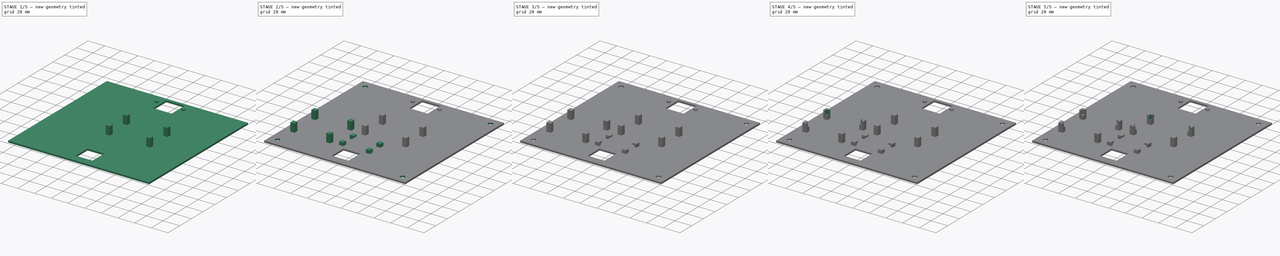
[diagram: build sequence overview — one tinted view per stage of 5, left to right]
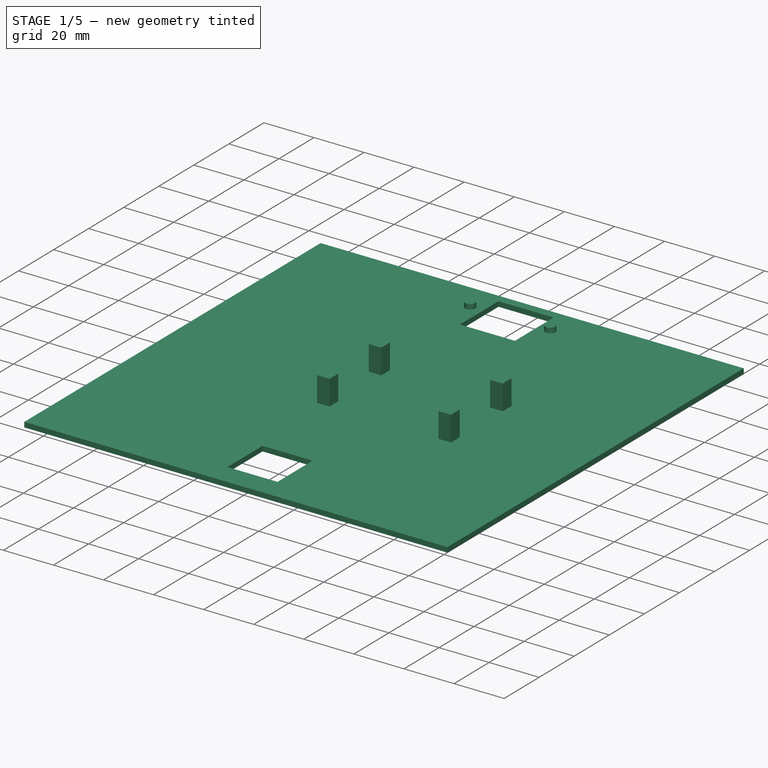
[diagram: stage 1 of 5 — iso view after this stage's code; geometry added in this stage tinted green]
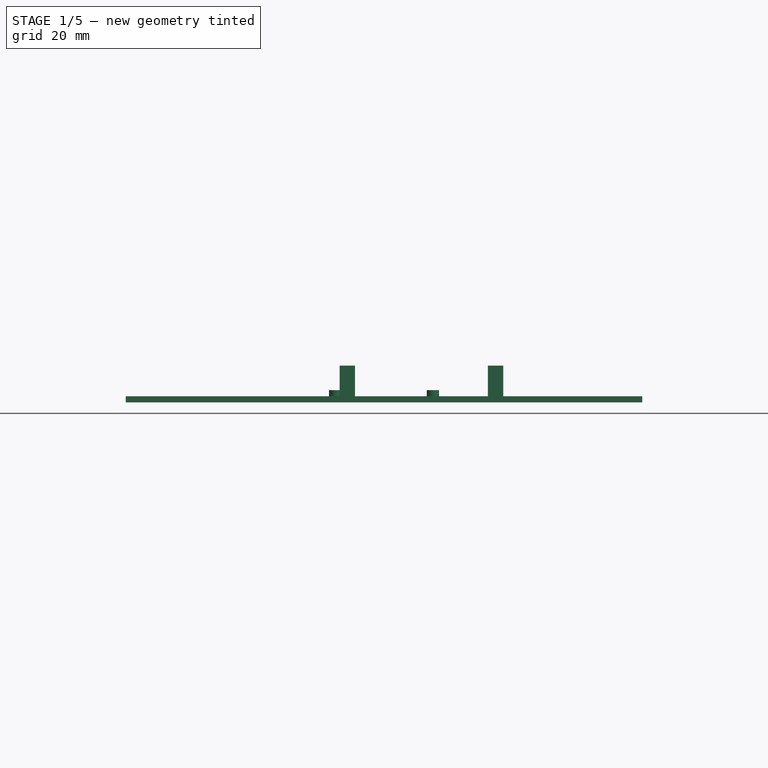
[diagram: stage 1 of 5 — front view after this stage's code; geometry added in this stage tinted green]
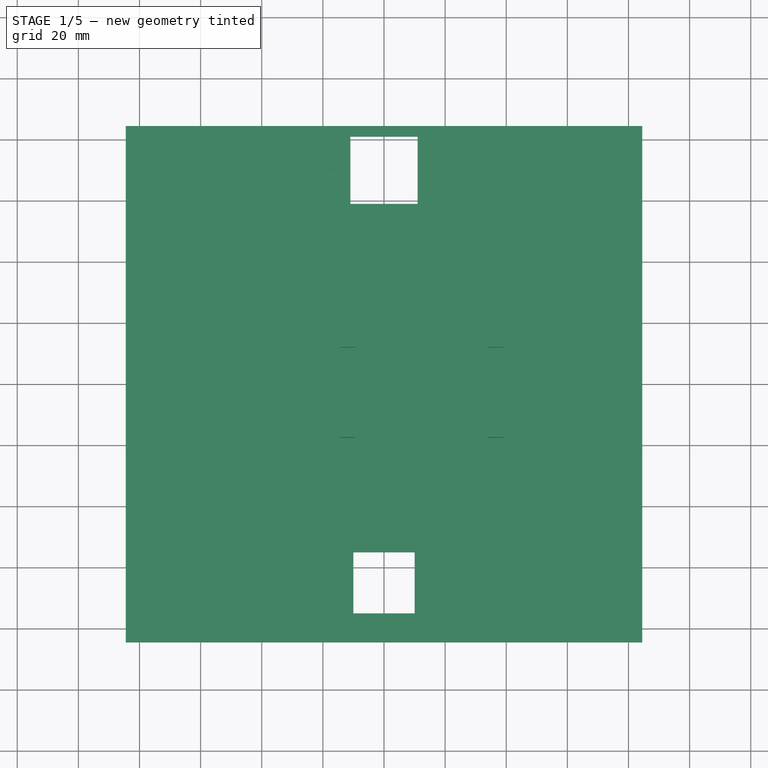
[diagram: stage 1 of 5 — top view after this stage's code; geometry added in this stage tinted green]
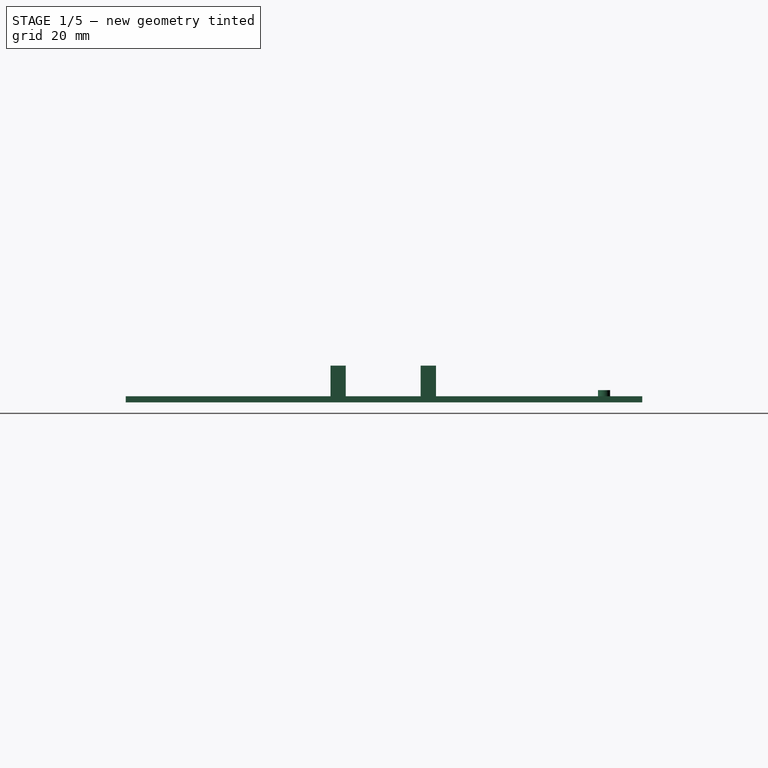
[diagram: stage 1 of 5 — right view after this stage's code; geometry added in this stage tinted green]
FCSTD DOCUMENT  (FreeCAD 1.0R38806 (Git))
Label: Frame75Back
License: All rights reserved
LicenseURL: https://en.wikipedia.org/wiki/All_rights_reserved
objects: Sketcher::SketchObject×19, PartDesign::Pocket×14, PartDesign::Pad×5, PartDesign::Plane×1, PartDesign::Body×1
note: 97 computed .brp shape members not serialized (recipe doc carries the construction recipe); baked Part::Feature solids carry a one-line shape summary decoded from their .brp

FEATURE [PartDesign::Plane] DatumPlane
  AttachmentSupport = -> [XY_Plane]
  Length = 202.8
  MapMode = 5
  ResizeMode = 0
  Width = 202.8
FEATURE [Sketcher::SketchObject] Sketch  label="FrameBaseS"
  ArcFitTolerance = 0
  AttachmentOffset = pos=(0,0,-2) rot=(0,0,1;0rad)
  AttachmentSupport = -> [DatumPlane]
  FullyConstrained = true
  MakeInternals = false
  MapMode = 5
  Placement = pos=(0,0,-2) rot=(0,0,1;0rad)
  sketch-geometry (5):
    g0: LineSegment StartX=-84.5 StartY=-84.5 StartZ=0 EndX=-84.5 EndY=84.5 EndZ=0
    g1: LineSegment StartX=-84.5 StartY=84.5 StartZ=0 EndX=84.5 EndY=84.5 EndZ=0
    g2: LineSegment StartX=84.5 StartY=84.5 StartZ=0 EndX=84.5 EndY=-84.5 EndZ=0
    g3: LineSegment StartX=84.5 StartY=-84.5 StartZ=0 EndX=-84.5 EndY=-84.5 EndZ=0
    g4: GeomPoint [constr] X=0 Y=-1e-16 Z=0
  constraints (12):
    c: Coincident(g0,g1)
    c: Coincident(g1,g2)
    c: Coincident(g2,g3)
    c: Coincident(g3,g0)
    c: Horizontal(g1)
    c: Horizontal(g3)
    c: Vertical(g0)
    c: Vertical(g2)
    c: Symmetric(g1,g0,g4)
    c: Coincident(g4,g-1)
    c: DistanceY(g0,g0) = 169  'Frame Height'
    c: DistanceX(g1,g1) = 169  'Frame Width'
FEATURE [PartDesign::Pad] Pad  label="FrameBase"
  Direction = (0,0,1)
  Length = 2
  Length2 = 10
  Profile = -> Sketch
  ReferenceAxis = -> Sketch [N_Axis]
  Suppressed = false
  Type = 0
FEATURE [Sketcher::SketchObject] Sketch001  label="HolesS"
  ArcFitTolerance = 0
  AttachmentSupport = -> [DatumPlane]
  ExternalGeometry = -> [Pad]
  FullyConstrained = true
  MakeInternals = false
  MapMode = 5
  sketch-geometry (8):
    g0: LineSegment [constr] StartX=-75 StartY=75 StartZ=0 EndX=75 EndY=75 EndZ=0
    g1: LineSegment [constr] StartX=75 StartY=75 StartZ=0 EndX=75 EndY=-75 EndZ=0
    g2: LineSegment [constr] StartX=75 StartY=-75 StartZ=0 EndX=-75 EndY=-75 EndZ=0
    g3: LineSegment [constr] StartX=-75 StartY=-75 StartZ=0 EndX=-75 EndY=75 EndZ=0
    g4: Circle CenterX=75 CenterY=75 CenterZ=0 NormalX=0 NormalY=0 NormalZ=1 AngleXU=0 Radius=2.75
    g5: Circle CenterX=75 CenterY=-75 CenterZ=0 NormalX=0 NormalY=0 NormalZ=1 AngleXU=0 Radius=2.75
    g6: Circle CenterX=-75 CenterY=-75 CenterZ=0 NormalX=0 NormalY=0 NormalZ=1 AngleXU=0 Radius=2.75
    g7: Circle CenterX=-75 CenterY=75 CenterZ=0 NormalX=0 NormalY=0 NormalZ=1 AngleXU=0 Radius=2.75
  constraints (20):
    c: Horizontal(g0)
    c: Vertical(g1)
    c: Horizontal(g2)
    c: Vertical(g3)
    c: Coincident(g0,g3)
    c: Coincident(g3,g2)
    c: Coincident(g1,g2)
    c: Coincident(g0,g1)
    c: Equal(g4,g5)
    c: Equal(g4,g6)
    c: Equal(g4,g7)
    c: Diameter(g4) = 5.5  'HolesDiameter'
    c: Coincident(g0,g7)
    c: Coincident(g4,g0)
    c: Coincident(g5,g1)
    c: Coincident(g6,g2)
    c: DistanceX(g7,g-1) = 75
    c: DistanceY(g7,g-1) = -75
    c: DistanceX(g5,g-1) = -75
    c: DistanceY(g5,g-1) = 75
FEATURE [Sketcher::SketchObject] Sketch002  label="CutoutsS"
  ArcFitTolerance = 0
  AttachmentSupport = -> [DatumPlane]
  ExternalGeometry = -> [Pad]
  FullyConstrained = true
  MakeInternals = false
  MapMode = 5
  sketch-geometry (10):
    g0: LineSegment StartX=-10 StartY=-55 StartZ=0 EndX=-10 EndY=-75 EndZ=0
    g1: LineSegment StartX=-10 StartY=-75 StartZ=0 EndX=10 EndY=-75 EndZ=0
    g2: LineSegment StartX=10 StartY=-75 StartZ=0 EndX=10 EndY=-55 EndZ=0
    g3: LineSegment StartX=10 StartY=-55 StartZ=0 EndX=-10 EndY=-55 EndZ=0
    g4: GeomPoint [constr] X=0 Y=-65 Z=0
    g5: LineSegment StartX=-11 StartY=81 StartZ=0 EndX=-11 EndY=59 EndZ=0
    g6: LineSegment StartX=-11 StartY=59 StartZ=0 EndX=11 EndY=59 EndZ=0
    g7: LineSegment StartX=11 StartY=59 StartZ=0 EndX=11 EndY=81 EndZ=0
    g8: LineSegment StartX=11 StartY=81 StartZ=0 EndX=-11 EndY=81 EndZ=0
    g9: GeomPoint [constr] X=0 Y=70 Z=0
  constraints (26):
    c: Coincident(g0,g1)
    c: Coincident(g1,g2)
    c: Coincident(g2,g3)
    c: Coincident(g3,g0)
    c: Horizontal(g1)
    c: Horizontal(g3)
    c: Vertical(g0)
    c: Vertical(g2)
    c: Symmetric(g1,g0,g4)
    c: PointOnObject(g4,g-2)
    c: DistanceX(g3,g3) = 20  'CableWidth'
    c: DistanceY(g0,g0) = 20  'CableHeight'
    c: Coincident(g5,g6)
    c: Coincident(g6,g7)
    c: Coincident(g7,g8)
    c: Coincident(g8,g5)
    c: Horizontal(g6)
    c: Horizontal(g8)
    c: Vertical(g5)
    c: Vertical(g7)
    c: Symmetric(g6,g5,g9)
    c: DistanceX(g8,g8) = 22  'SensorWidth'
    c: PointOnObject(g9,g-2)
    c: DistanceY(g4,g-1) = 65
    c: Distance(g7) = 22
    c: DistanceY(g-1,g9) = 70
FEATURE [PartDesign::Pocket] Pocket001  label="Cutouts"
  BaseFeature = -> Pad
  Direction = (0,0,-1)
  Length = 5
  Length2 = 5
  Profile = -> Sketch002
  ReferenceAxis = -> Sketch002 [N_Axis]
  Suppressed = false
  Type = 2
FEATURE [Sketcher::SketchObject] Sketch003  label="PegsS"
  ArcFitTolerance = 0
  AttachmentSupport = -> [DatumPlane]
  ExternalGeometry = -> [Pad]
  FullyConstrained = true
  MakeInternals = false
  MapMode = 5
  sketch-geometry (2):
    g0: Circle CenterX=-16 CenterY=72 CenterZ=0 NormalX=0 NormalY=0 NormalZ=1 AngleXU=0 Radius=2
    g1: Circle CenterX=16 CenterY=72 CenterZ=0 NormalX=0 NormalY=0 NormalZ=1 AngleXU=0 Radius=2
  constraints (6):
    c: Equal(g0,g1)
    c: Diameter(g0) = 4  'PegDiameter'
    c: Distance(g0,g-3) = 12.5  'LPegOffsetY'
    c: Distance(g1,g-3) = 12.5  'RPegOffsetY'
    c: DistanceX(g-2,g0) = -16  'LPegOffsetX'
    c: DistanceX(g-2,g1) = 16  'RPegOffsetX'
FEATURE [PartDesign::Pad] Pad001  label="Pegs"
  BaseFeature = -> Pocket001
  Direction = (0,0,1)
  Length = 2
  Length2 = 10
  Profile = -> Sketch003
  ReferenceAxis = -> Sketch003 [N_Axis]
  Suppressed = false
  Type = 0
FEATURE [Sketcher::SketchObject] Sketch005  label="ESP32MountsS"
  ArcFitTolerance = 0
  AttachmentSupport = -> [DatumPlane]
  FullyConstrained = true
  MakeInternals = false
  MapMode = 5
  sketch-geometry (25):
    g0: LineSegment StartX=-14.5 StartY=17 StartZ=0 EndX=-14.5 EndY=12 EndZ=0
    g1: LineSegment StartX=-14.5 StartY=12 StartZ=0 EndX=-9.5 EndY=12 EndZ=0
    g2: LineSegment StartX=-9.5 StartY=12 StartZ=0 EndX=-9.5 EndY=17 EndZ=0
    g3: LineSegment StartX=-9.5 StartY=17 StartZ=0 EndX=-14.5 EndY=17 EndZ=0
    g4: GeomPoint [constr] X=-12 Y=14.5 Z=0
    g5: LineSegment StartX=34 StartY=17 StartZ=0 EndX=34 EndY=12 EndZ=0
    g6: LineSegment StartX=34 StartY=12 StartZ=0 EndX=39 EndY=12 EndZ=0
    g7: LineSegment StartX=39 StartY=12 StartZ=0 EndX=39 EndY=17 EndZ=0
    g8: LineSegment StartX=39 StartY=17 StartZ=0 EndX=34 EndY=17 EndZ=0
    g9: GeomPoint [constr] X=36.5 Y=14.5 Z=0
    g10: LineSegment StartX=-14.5 StartY=-12.5 StartZ=0 EndX=-14.5 EndY=-17.5 EndZ=0
    g11: LineSegment StartX=-14.5 StartY=-17.5 StartZ=0 EndX=-9.5 EndY=-17.5 EndZ=0
    g12: LineSegment StartX=-9.5 StartY=-17.5 StartZ=0 EndX=-9.5 EndY=-12.5 EndZ=0
    g13: LineSegment StartX=-9.5 StartY=-12.5 StartZ=0 EndX=-14.5 EndY=-12.5 EndZ=0
    g14: GeomPoint [constr] X=-12 Y=-15 Z=0
    g15: LineSegment StartX=34 StartY=-12.5 StartZ=0 EndX=34 EndY=-17.5 EndZ=0
    g16: LineSegment StartX=34 StartY=-17.5 StartZ=0 EndX=39 EndY=-17.5 EndZ=0
    g17: LineSegment StartX=39 StartY=-17.5 StartZ=0 EndX=39 EndY=-12.5 EndZ=0
    g18: LineSegment StartX=39 StartY=-12.5 StartZ=0 EndX=34 EndY=-12.5 EndZ=0
    g19: GeomPoint [constr] X=36.5 Y=-15 Z=0
    g20: LineSegment [constr] StartX=-12 StartY=-15 StartZ=0 EndX=36.5 EndY=-15 EndZ=0
    g21: LineSegment [constr] StartX=-12 StartY=14.5 StartZ=0 EndX=36.5 EndY=14.5 EndZ=0
    g22: LineSegment [constr] StartX=36.5 StartY=14.5 StartZ=0 EndX=36.5 EndY=-15 EndZ=0
    g23: LineSegment [constr] StartX=-12 StartY=14.5 StartZ=0 EndX=-12 EndY=-15 EndZ=0
    g24: LineSegment [constr] StartX=0 StartY=14.5 StartZ=0 EndX=0 EndY=-15 EndZ=0
  constraints (64):
    c: Coincident(g0,g1)
    c: Coincident(g1,g2)
    c: Coincident(g2,g3)
    c: Coincident(g3,g0)
    c: Horizontal(g1)
    c: Horizontal(g3)
    c: Vertical(g0)
    c: Vertical(g2)
    c: Symmetric(g1,g0,g4)
    c: Coincident(g5,g6)
    c: Coincident(g6,g7)
    c: Coincident(g7,g8)
    c: Coincident(g8,g5)
    c: Horizontal(g6)
    c: Horizontal(g8)
    c: Vertical(g5)
    c: Vertical(g7)
    c: Symmetric(g6,g5,g9)
    c: Coincident(g10,g11)
    c: Coincident(g11,g12)
    c: Coincident(g12,g13)
    c: Coincident(g13,g10)
    c: Horizontal(g11)
    c: Horizontal(g13)
    c: Vertical(g10)
    c: Vertical(g12)
    c: Symmetric(g11,g10,g14)
    c: Coincident(g15,g16)
    c: Coincident(g16,g17)
    c: Coincident(g17,g18)
    c: Coincident(g18,g15)
    c: Horizontal(g16)
    c: Horizontal(g18)
    c: Vertical(g15)
    c: Vertical(g17)
    c: Symmetric(g16,g15,g19)
    c: DistanceX(g8,g8) = 5
    c: DistanceY(g7,g7) = 5
    c: DistanceX(g3,g3) = 5
    c: DistanceY(g0,g0) = 5
    c: DistanceX(g11,g11) = 5
    c: DistanceY(g10,g10) = 5
    c: DistanceX(g16,g16) = 5
    c: DistanceY(g17,g17) = 5
    c: Horizontal(g20)
    c: Horizontal(g21)
    c: Vertical(g22)
    c: Vertical(g23)
    c: Coincident(g4,g21)
    c: Coincident(g4,g23)
    c: Coincident(g14,g23)
    c: Coincident(g14,g20)
    c: Coincident(g9,g21)
    c: Coincident(g9,g22)
    c: Coincident(g19,g20)
    c: Coincident(g19,g22)
    c: DistanceX(g21,g21) = 48.5  'ESPWidth'
    c: DistanceY(g23,g23) = 29.5  'ESPHeight'
    c: Vertical(g24)
    c: PointOnObject(g24,g21)
    c: PointOnObject(g24,g20)
    c: Distance(g19,g24) = 36.5  'RibbonOffset'
    c: PointOnObject(g24,g-2)  'BoardOffsetX'
    c: DistanceY(g-1,g24) = -15  'BoardOffsetY'
FEATURE [PartDesign::Pad] Pad003  label="ESP32Mounts"
  BaseFeature = -> Pad001
  Direction = (0,0,1)
  Length = 10
  Length2 = 10
  Profile = -> Sketch005
  ReferenceAxis = -> Sketch005 [N_Axis]
  Suppressed = false
  Type = 0
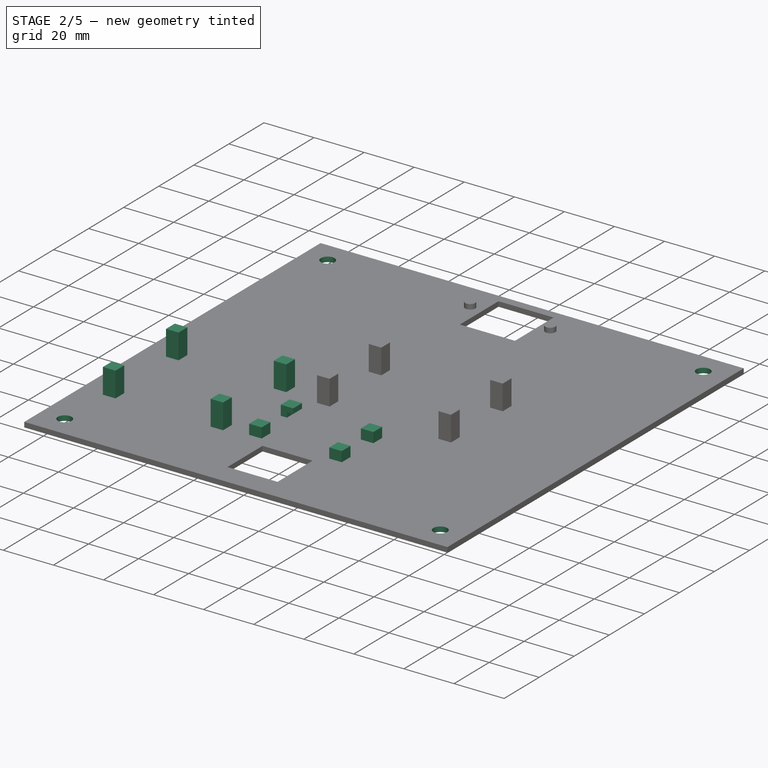
[diagram: stage 2 of 5 — iso view after this stage's code; geometry added in this stage tinted green]
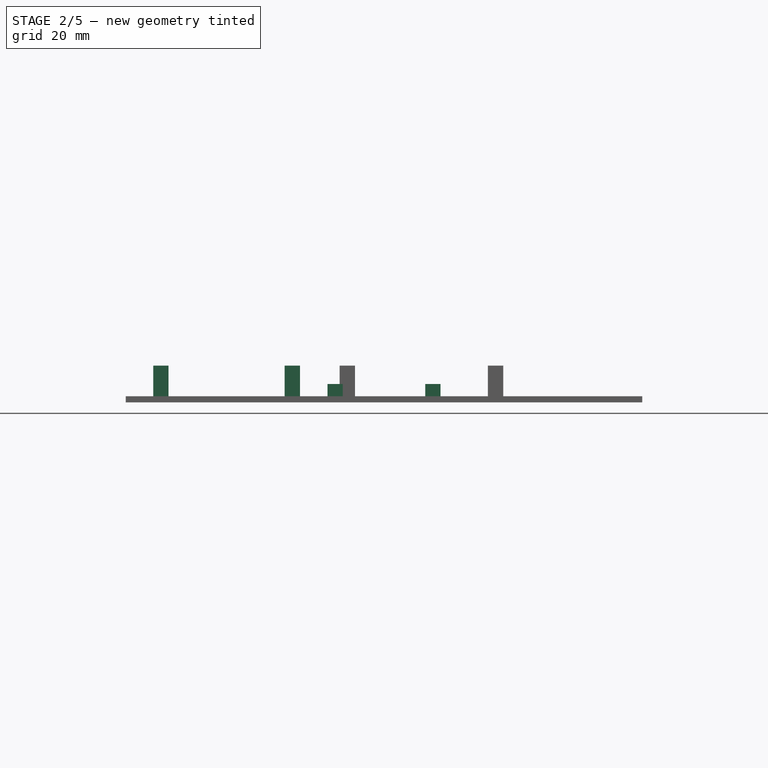
[diagram: stage 2 of 5 — front view after this stage's code; geometry added in this stage tinted green]
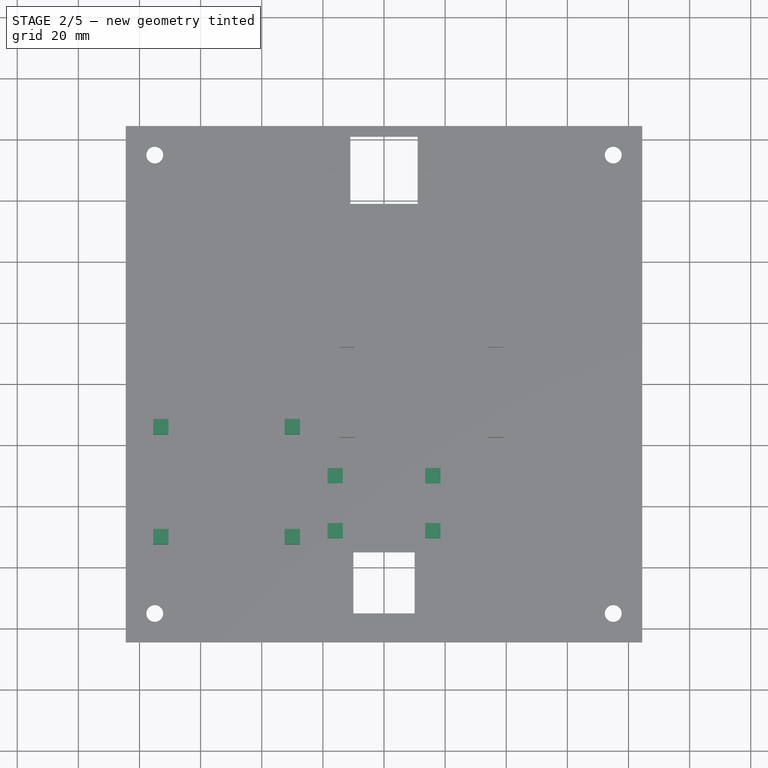
[diagram: stage 2 of 5 — top view after this stage's code; geometry added in this stage tinted green]
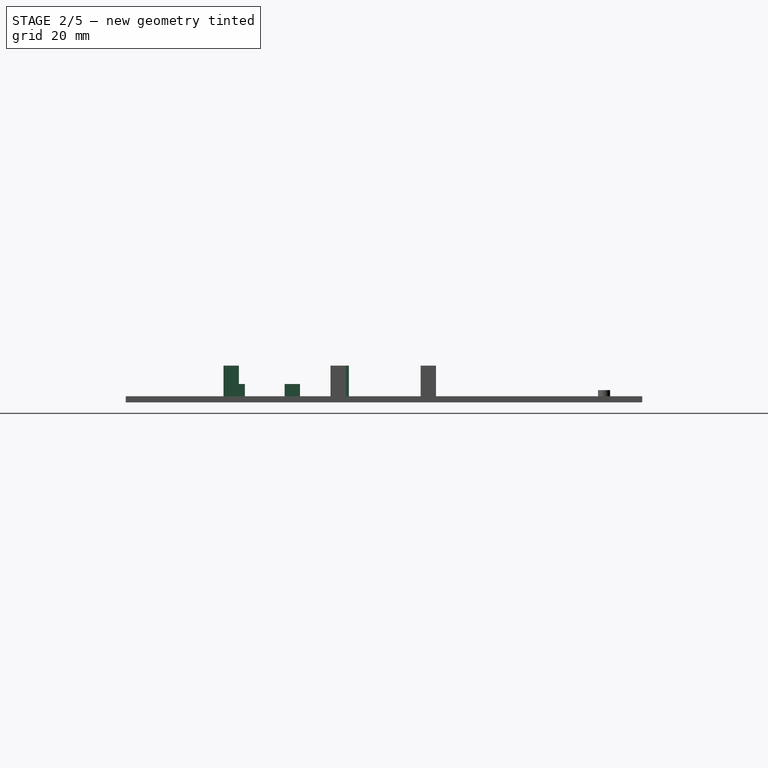
[diagram: stage 2 of 5 — right view after this stage's code; geometry added in this stage tinted green]
FEATURE [Sketcher::SketchObject] Sketch007  label="PSUMountsS"
  ArcFitTolerance = 0
  AttachmentSupport = -> [DatumPlane]
  FullyConstrained = true
  MakeInternals = false
  MapMode = 5
  sketch-geometry (25):
    g0: LineSegment StartX=-75.5 StartY=-11.5 StartZ=0 EndX=-75.5 EndY=-16.5 EndZ=0
    g1: LineSegment StartX=-75.5 StartY=-16.5 StartZ=0 EndX=-70.5 EndY=-16.5 EndZ=0
    g2: LineSegment StartX=-70.5 StartY=-16.5 StartZ=0 EndX=-70.5 EndY=-11.5 EndZ=0
    g3: LineSegment StartX=-70.5 StartY=-11.5 StartZ=0 EndX=-75.5 EndY=-11.5 EndZ=0
    g4: GeomPoint [constr] X=-73 Y=-14 Z=0
    g5: LineSegment StartX=-32.5 StartY=-11.5 StartZ=0 EndX=-32.5 EndY=-16.5 EndZ=0
    g6: LineSegment StartX=-32.5 StartY=-16.5 StartZ=0 EndX=-27.5 EndY=-16.5 EndZ=0
    g7: LineSegment StartX=-27.5 StartY=-16.5 StartZ=0 EndX=-27.5 EndY=-11.5 EndZ=0
    g8: LineSegment StartX=-27.5 StartY=-11.5 StartZ=0 EndX=-32.5 EndY=-11.5 EndZ=0
    g9: GeomPoint [constr] X=-30 Y=-14 Z=0
    g10: LineSegment StartX=-75.5 StartY=-47.5 StartZ=0 EndX=-75.5 EndY=-52.5 EndZ=0
    g11: LineSegment StartX=-75.5 StartY=-52.5 StartZ=0 EndX=-70.5 EndY=-52.5 EndZ=0
    g12: LineSegment StartX=-70.5 StartY=-52.5 StartZ=0 EndX=-70.5 EndY=-47.5 EndZ=0
    g13: LineSegment StartX=-70.5 StartY=-47.5 StartZ=0 EndX=-75.5 EndY=-47.5 EndZ=0
    g14: GeomPoint [constr] X=-73 Y=-50 Z=0
    g15: LineSegment StartX=-32.5 StartY=-47.5 StartZ=0 EndX=-32.5 EndY=-52.5 EndZ=0
    g16: LineSegment StartX=-32.5 StartY=-52.5 StartZ=0 EndX=-27.5 EndY=-52.5 EndZ=0
    g17: LineSegment StartX=-27.5 StartY=-52.5 StartZ=0 EndX=-27.5 EndY=-47.5 EndZ=0
    g18: LineSegment StartX=-27.5 StartY=-47.5 StartZ=0 EndX=-32.5 EndY=-47.5 EndZ=0
    g19: GeomPoint [constr] X=-30 Y=-50 Z=0
    g20: LineSegment [constr] StartX=-73 StartY=-50 StartZ=0 EndX=-30 EndY=-50 EndZ=0
    g21: LineSegment [constr] StartX=-73 StartY=-14 StartZ=0 EndX=-30 EndY=-14 EndZ=0
    g22: LineSegment [constr] StartX=-30 StartY=-14 StartZ=0 EndX=-30 EndY=-50 EndZ=0
    g23: LineSegment [constr] StartX=-73 StartY=-14 StartZ=0 EndX=-73 EndY=-50 EndZ=0
    g24: LineSegment [constr] StartX=-18 StartY=-14 StartZ=0 EndX=-18 EndY=-50 EndZ=0
  constraints (64):
    c: Coincident(g0,g1)
    c: Coincident(g1,g2)
    c: Coincident(g2,g3)
    c: Coincident(g3,g0)
    c: Horizontal(g1)
    c: Horizontal(g3)
    c: Vertical(g0)
    c: Vertical(g2)
    c: Symmetric(g1,g0,g4)
    c: Coincident(g5,g6)
    c: Coincident(g6,g7)
    c: Coincident(g7,g8)
    c: Coincident(g8,g5)
    c: Horizontal(g6)
    c: Horizontal(g8)
    c: Vertical(g5)
    c: Vertical(g7)
    c: Symmetric(g6,g5,g9)
    c: Coincident(g10,g11)
    c: Coincident(g11,g12)
    c: Coincident(g12,g13)
    c: Coincident(g13,g10)
    c: Horizontal(g11)
    c: Horizontal(g13)
    c: Vertical(g10)
    c: Vertical(g12)
    c: Symmetric(g11,g10,g14)
    c: Coincident(g15,g16)
    c: Coincident(g16,g17)
    c: Coincident(g17,g18)
    c: Coincident(g18,g15)
    c: Horizontal(g16)
    c: Horizontal(g18)
    c: Vertical(g15)
    c: Vertical(g17)
    c: Symmetric(g16,g15,g19)
    c: DistanceX(g8,g8) = 5
    c: DistanceY(g7,g7) = 5
    c: DistanceX(g3,g3) = 5
    c: DistanceY(g0,g0) = 5
    c: DistanceX(g11,g11) = 5
    c: DistanceY(g10,g10) = 5
    c: DistanceX(g16,g16) = 5
    c: DistanceY(g17,g17) = 5
    c: Horizontal(g20)
    c: Horizontal(g21)
    c: Vertical(g22)
    c: Vertical(g23)
    c: Coincident(g4,g21)
    c: Coincident(g4,g23)
    c: Coincident(g14,g23)
    c: Coincident(g14,g20)
    c: Coincident(g9,g21)
    c: Coincident(g9,g22)
    c: Coincident(g19,g20)
    c: Coincident(g19,g22)
    c: DistanceX(g21,g21) = 43  'BoardWidth'
    c: DistanceY(g23,g23) = 36  'BoardHeight'
    c: Vertical(g24)
    c: PointOnObject(g24,g21)
    c: PointOnObject(g24,g20)
    c: Distance(g19,g24) = 12  'RibbonOffset'
    c: DistanceY(g-1,g24) = -50  'BoardOffsetY'
    c: DistanceX(g-2,g19) = -30  'BoardOffsetX'
FEATURE [PartDesign::Pad] Pad004  label="PSUMounts"
  BaseFeature = -> Pad003
  Direction = (0,0,1)
  Length = 10
  Length2 = 10
  Profile = -> Sketch007
  ReferenceAxis = -> Sketch007 [N_Axis]
  Suppressed = false
  Type = 0
FEATURE [PartDesign::Pocket] Pocket  label="HolesSP"
  BaseFeature = -> Pad004
  Direction = (0,0,-1)
  Length = 5
  Length2 = 5
  Profile = -> Sketch001
  ReferenceAxis = -> Sketch001 [N_Axis]
  Refine = true
  Suppressed = false
  Type = 1
FEATURE [Sketcher::SketchObject] Sketch016
  ArcFitTolerance = 1e-06
  AttachmentSupport = -> [DatumPlane]
  FullyConstrained = true
  MakeInternals = false
  MapMode = 5
  sketch-geometry (24):
    g0: LineSegment StartX=-18.5 StartY=-27.5 StartZ=0 EndX=-18.5 EndY=-32.5 EndZ=0
    g1: LineSegment StartX=-18.5 StartY=-32.5 StartZ=0 EndX=-13.5 EndY=-32.5 EndZ=0
    g2: LineSegment StartX=-13.5 StartY=-32.5 StartZ=0 EndX=-13.5 EndY=-27.5 EndZ=0
    g3: LineSegment StartX=-13.5 StartY=-27.5 StartZ=0 EndX=-18.5 EndY=-27.5 EndZ=0
    g4: GeomPoint [constr] X=-16 Y=-30 Z=0
    g5: LineSegment StartX=13.5 StartY=-27.5 StartZ=0 EndX=13.5 EndY=-32.5 EndZ=0
    g6: LineSegment StartX=13.5 StartY=-32.5 StartZ=0 EndX=18.5 EndY=-32.5 EndZ=0
    g7: LineSegment StartX=18.5 StartY=-32.5 StartZ=0 EndX=18.5 EndY=-27.5 EndZ=0
    g8: LineSegment StartX=18.5 StartY=-27.5 StartZ=0 EndX=13.5 EndY=-27.5 EndZ=0
    g9: GeomPoint [constr] X=16 Y=-30 Z=0
    g10: LineSegment StartX=-18.5 StartY=-45.5 StartZ=0 EndX=-18.5 EndY=-50.5 EndZ=0
    g11: LineSegment StartX=-18.5 StartY=-50.5 StartZ=0 EndX=-13.5 EndY=-50.5 EndZ=0
    g12: LineSegment StartX=-13.5 StartY=-50.5 StartZ=0 EndX=-13.5 EndY=-45.5 EndZ=0
    g13: LineSegment StartX=-13.5 StartY=-45.5 StartZ=0 EndX=-18.5 EndY=-45.5 EndZ=0
    g14: GeomPoint [constr] X=-16 Y=-48 Z=0
    g15: LineSegment StartX=13.5 StartY=-45.5 StartZ=0 EndX=13.5 EndY=-50.5 EndZ=0
    g16: LineSegment StartX=13.5 StartY=-50.5 StartZ=0 EndX=18.5 EndY=-50.5 EndZ=0
    g17: LineSegment StartX=18.5 StartY=-50.5 StartZ=0 EndX=18.5 EndY=-45.5 EndZ=0
    g18: LineSegment StartX=18.5 StartY=-45.5 StartZ=0 EndX=13.5 EndY=-45.5 EndZ=0
    g19: GeomPoint [constr] X=16 Y=-48 Z=0
    g20: LineSegment [constr] StartX=-16 StartY=-30 StartZ=0 EndX=-16 EndY=-48 EndZ=0
    g21: LineSegment [constr] StartX=-16 StartY=-48 StartZ=0 EndX=16 EndY=-48 EndZ=0
    g22: LineSegment [constr] StartX=16 StartY=-30 StartZ=0 EndX=16 EndY=-48 EndZ=0
    g23: LineSegment [constr] StartX=-16 StartY=-30 StartZ=0 EndX=16 EndY=-30 EndZ=0
  constraints (60):
    c: Coincident(g0,g1)
    c: Coincident(g1,g2)
    c: Coincident(g2,g3)
    c: Coincident(g3,g0)
    c: Vertical(g0)
    c: Vertical(g2)
    c: Horizontal(g1)
    c: Horizontal(g3)
    c: Symmetric(g2,g0,g4)
    c: Coincident(g5,g6)
    c: Coincident(g6,g7)
    c: Coincident(g7,g8)
    c: Coincident(g8,g5)
    c: Vertical(g5)
    c: Vertical(g7)
    c: Horizontal(g6)
    c: Horizontal(g8)
    c: Symmetric(g7,g5,g9)
    c: Coincident(g10,g11)
    c: Coincident(g11,g12)
    c: Coincident(g12,g13)
    c: Coincident(g13,g10)
    c: Vertical(g10)
    c: Vertical(g12)
    c: Horizontal(g11)
    c: Horizontal(g13)
    c: Symmetric(g12,g10,g14)
    c: Coincident(g15,g16)
    c: Coincident(g16,g17)
    c: Coincident(g17,g18)
    c: Coincident(g18,g15)
    c: Vertical(g15)
    c: Vertical(g17)
    c: Horizontal(g16)
    c: Horizontal(g18)
    c: Symmetric(g17,g15,g19)
    c: DistanceX(g3,g3) = 5
    c: DistanceY(g0,g0) = 5
    c: DistanceY(g10,g10) = 5
    c: DistanceX(g11,g11) = 5
    c: DistanceX(g8,g8) = 5
    c: DistanceY(g7,g7) = 5
    c: DistanceY(g17,g17) = 5
    c: DistanceX(g16,g16) = 5
    c: Vertical(g20)
    c: Horizontal(g21)
    c: Vertical(g22)
    c: Horizontal(g23)
    c: Coincident(g23,g20)
    c: Coincident(g22,g23)
    c: Coincident(g20,g21)
    c: Coincident(g21,g22)
    c: Coincident(g9,g22)
    c: Coincident(g21,g19)
    c: Coincident(g14,g20)
    c: Coincident(g20,g4)
    c: Distance(g-3,g21) = 7
    c: DistanceX(g23,g23) = 32
    c: DistanceY(g22,g22) = 18
    c: Distance(g-2,g20) = 16
FEATURE [PartDesign::Pad] Pad005
  BaseFeature = -> Pocket
  Direction = (0,0,1)
  Length = 4
  Length2 = 10
  Profile = -> Sketch016
  ReferenceAxis = -> Sketch016 [N_Axis]
  Refine = true
  Suppressed = false
  Type = 0
FEATURE [Sketcher::SketchObject] Sketch017
  ArcFitTolerance = 1e-06
  AttachmentSupport = -> [Pad005]
  ExternalGeometry = -> [Pad005]
  FullyConstrained = true
  MakeInternals = false
  MapMode = 5
  Placement = pos=(0,-32.5,0) rot=(1,0,0;1.5708rad)
  sketch-geometry (4):
    g0: LineSegment StartX=-16 StartY=2 StartZ=0 EndX=-16 EndY=0 EndZ=0
    g1: LineSegment StartX=-16 StartY=0 StartZ=0 EndX=-13.5 EndY=0 EndZ=0
    g2: LineSegment StartX=-13.5 StartY=0 StartZ=0 EndX=-13.5 EndY=2 EndZ=0
    g3: LineSegment StartX=-13.5 StartY=2 StartZ=0 EndX=-16 EndY=2 EndZ=0
  constraints (11):
    c: Coincident(g0,g1)
    c: Coincident(g1,g2)
    c: Coincident(g2,g3)
    c: Coincident(g3,g0)
    c: Vertical(g0)
    c: Vertical(g2)
    c: Horizontal(g1)
    c: Horizontal(g3)
    c: Coincident(g1,g-4)
    c: DistanceY(g2,g2) = 2
    c: DistanceX(g3,g3) = 2.5
FEATURE [PartDesign::Pocket] Pocket010
  BaseFeature = -> Pad005
  Direction = (0,1,-2e-16)
  Length = 2.5
  Length2 = 5
  Profile = -> Sketch017
  ReferenceAxis = -> Sketch017 [N_Axis]
  Refine = true
  Suppressed = false
  Type = 2
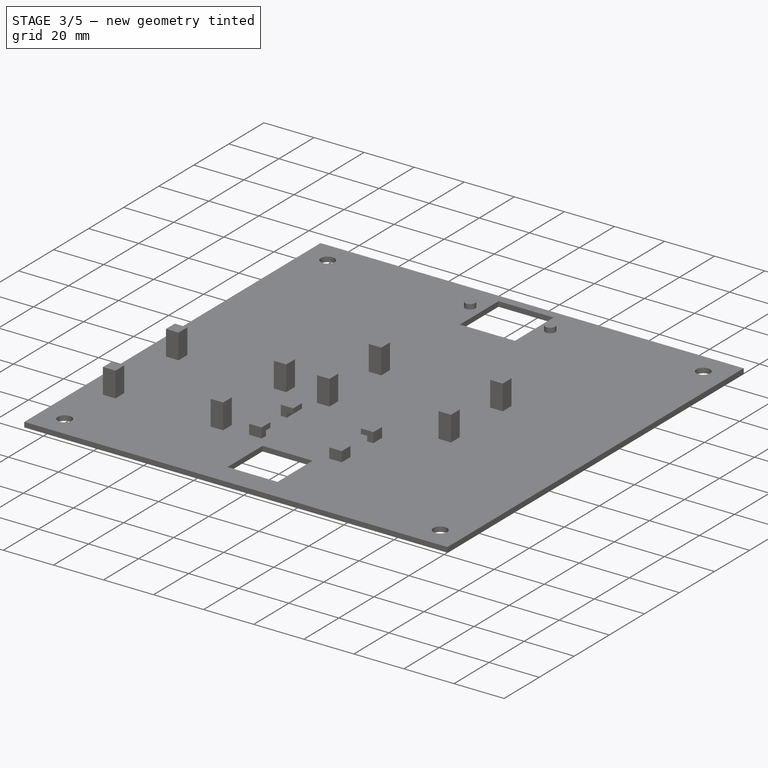
[diagram: stage 3 of 5 — iso view after this stage's code; geometry added in this stage tinted green]
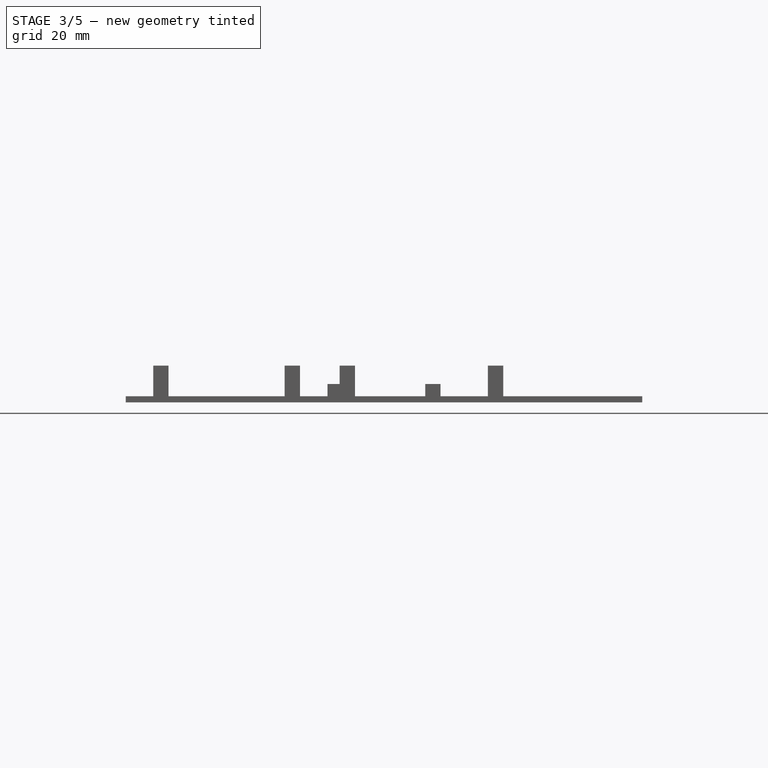
[diagram: stage 3 of 5 — front view after this stage's code; geometry added in this stage tinted green]
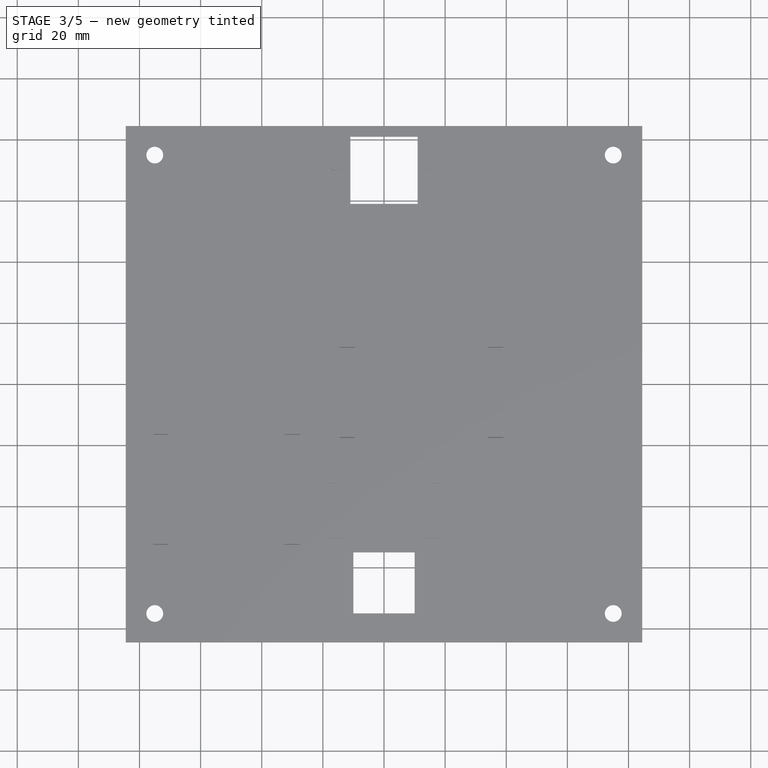
[diagram: stage 3 of 5 — top view after this stage's code; geometry added in this stage tinted green]
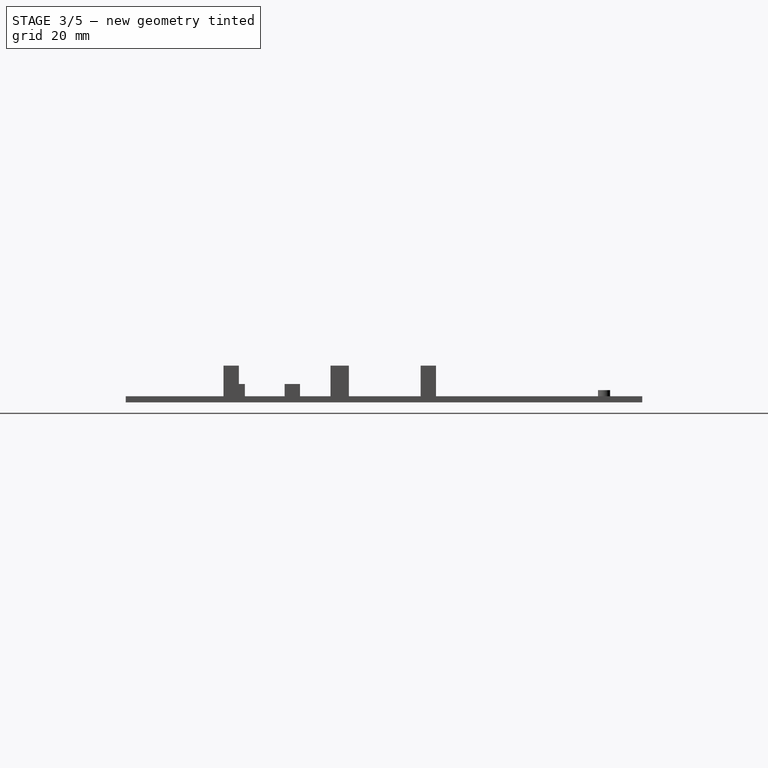
[diagram: stage 3 of 5 — right view after this stage's code; geometry added in this stage tinted green]
FEATURE [Sketcher::SketchObject] Sketch018
  ArcFitTolerance = 1e-06
  AttachmentSupport = -> [Pocket010]
  ExternalGeometry = -> [Pocket010]
  FullyConstrained = true
  MakeInternals = false
  MapMode = 5
  Placement = pos=(0,-32.5,0) rot=(1,0,0;1.5708rad)
  sketch-geometry (4):
    g0: LineSegment StartX=13.5 StartY=2 StartZ=0 EndX=13.5 EndY=0 EndZ=0
    g1: LineSegment StartX=13.5 StartY=0 StartZ=0 EndX=16 EndY=0 EndZ=0
    g2: LineSegment StartX=16 StartY=0 StartZ=0 EndX=16 EndY=2 EndZ=0
    g3: LineSegment StartX=16 StartY=2 StartZ=0 EndX=13.5 EndY=2 EndZ=0
  constraints (11):
    c: Coincident(g0,g1)
    c: Coincident(g1,g2)
    c: Coincident(g2,g3)
    c: Coincident(g3,g0)
    c: Vertical(g0)
    c: Vertical(g2)
    c: Horizontal(g1)
    c: Horizontal(g3)
    c: Coincident(g0,g-3)
    c: DistanceY(g2,g2) = 2
    c: DistanceX(g3,g3) = 2.5
FEATURE [PartDesign::Pocket] Pocket011
  BaseFeature = -> Pocket010
  Direction = (0,1,-2e-16)
  Length = 2.5
  Length2 = 5
  Profile = -> Sketch018
  ReferenceAxis = -> Sketch018 [N_Axis]
  Refine = true
  Suppressed = false
  Type = 2
FEATURE [Sketcher::SketchObject] Sketch019
  ArcFitTolerance = 1e-06
  AttachmentSupport = -> [Pocket011]
  ExternalGeometry = -> [Pocket011]
  FullyConstrained = true
  MakeInternals = false
  MapMode = 5
  Placement = pos=(0,-45.5,0) rot=(0,0.707107,0.707107;3.14159rad)
  sketch-geometry (4):
    g0: LineSegment StartX=-16 StartY=2 StartZ=0 EndX=-16 EndY=0 EndZ=0
    g1: LineSegment StartX=-16 StartY=0 StartZ=0 EndX=-13.5 EndY=0 EndZ=0
    g2: LineSegment StartX=-13.5 StartY=0 StartZ=0 EndX=-13.5 EndY=2 EndZ=0
    g3: LineSegment StartX=-13.5 StartY=2 StartZ=0 EndX=-16 EndY=2 EndZ=0
  constraints (11):
    c: Coincident(g0,g1)
    c: Coincident(g1,g2)
    c: Coincident(g2,g3)
    c: Coincident(g3,g0)
    c: Vertical(g0)
    c: Vertical(g2)
    c: Horizontal(g1)
    c: Horizontal(g3)
    c: Coincident(g1,g-4)
    c: DistanceY(g0,g0) = 2
    c: DistanceX(g3,g3) = 2.5
FEATURE [PartDesign::Pocket] Pocket012
  BaseFeature = -> Pocket011
  Direction = (0,-1,2e-16)
  Length = 2.5
  Length2 = 5
  Profile = -> Sketch019
  ReferenceAxis = -> Sketch019 [N_Axis]
  Refine = true
  Suppressed = false
  Type = 0
FEATURE [Sketcher::SketchObject] Sketch020
  ArcFitTolerance = 1e-06
  AttachmentSupport = -> [Pocket012]
  ExternalGeometry = -> [Pocket012]
  FullyConstrained = true
  MakeInternals = false
  MapMode = 5
  Placement = pos=(0,-45.5,0) rot=(0,0.707107,0.707107;3.14159rad)
  sketch-geometry (4):
    g0: LineSegment StartX=13.5 StartY=2 StartZ=0 EndX=13.5 EndY=0 EndZ=0
    g1: LineSegment StartX=13.5 StartY=0 StartZ=0 EndX=16 EndY=0 EndZ=0
    g2: LineSegment StartX=16 StartY=0 StartZ=0 EndX=16 EndY=2 EndZ=0
    g3: LineSegment StartX=16 StartY=2 StartZ=0 EndX=13.5 EndY=2 EndZ=0
  constraints (11):
    c: Coincident(g0,g1)
    c: Coincident(g1,g2)
    c: Coincident(g2,g3)
    c: Coincident(g3,g0)
    c: Vertical(g0)
    c: Vertical(g2)
    c: Horizontal(g1)
    c: Horizontal(g3)
    c: Coincident(g0,g-3)
    c: DistanceY(g2,g2) = 2
    c: DistanceX(g3,g3) = 2.5
FEATURE [PartDesign::Pocket] Pocket013
  BaseFeature = -> Pocket012
  Direction = (0,-1,2e-16)
  Length = 2.5
  Length2 = 5
  Profile = -> Sketch020
  ReferenceAxis = -> Sketch020 [N_Axis]
  Refine = true
  Suppressed = false
  Type = 0
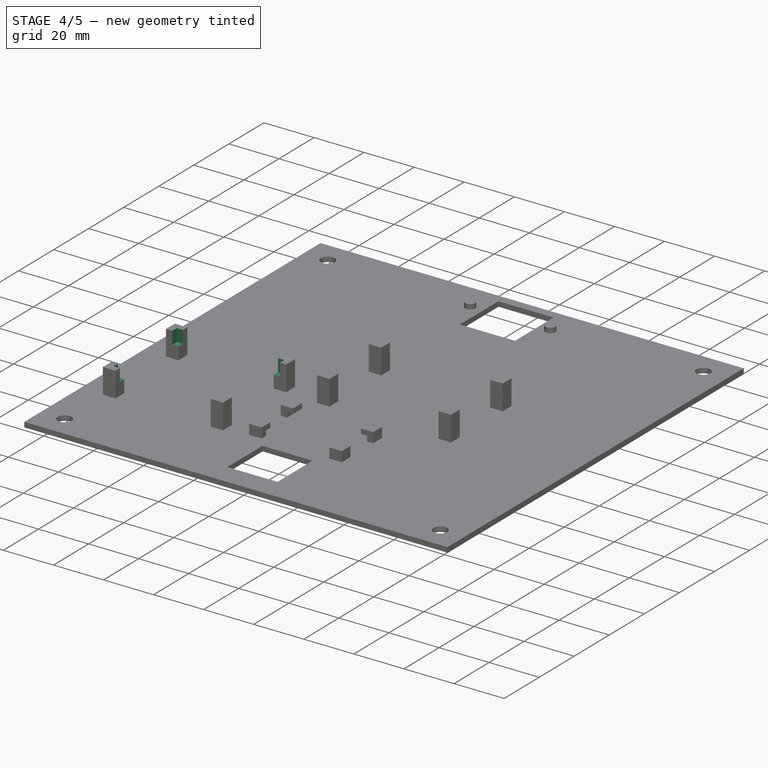
[diagram: stage 4 of 5 — iso view after this stage's code; geometry added in this stage tinted green]
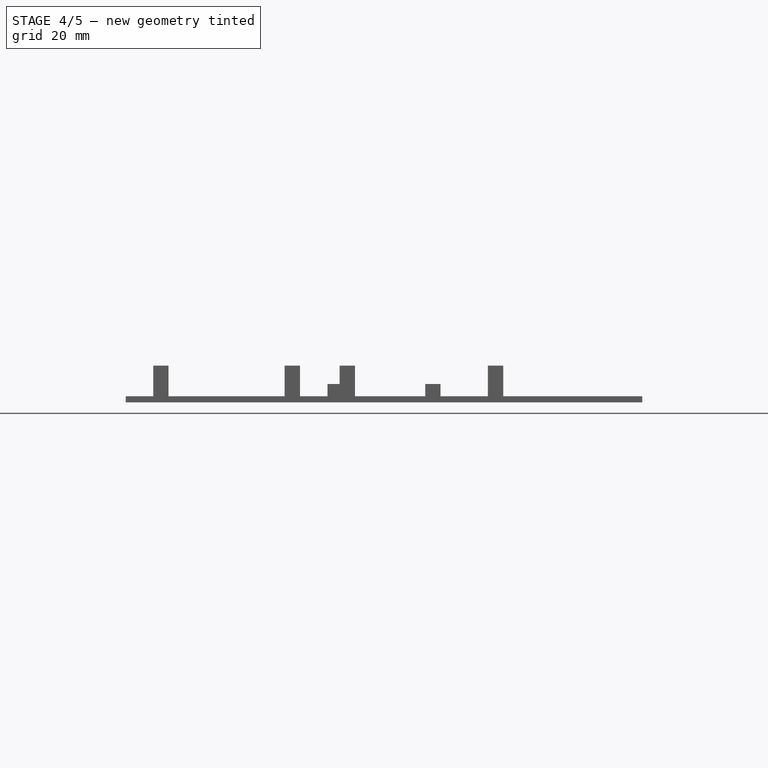
[diagram: stage 4 of 5 — front view after this stage's code; geometry added in this stage tinted green]
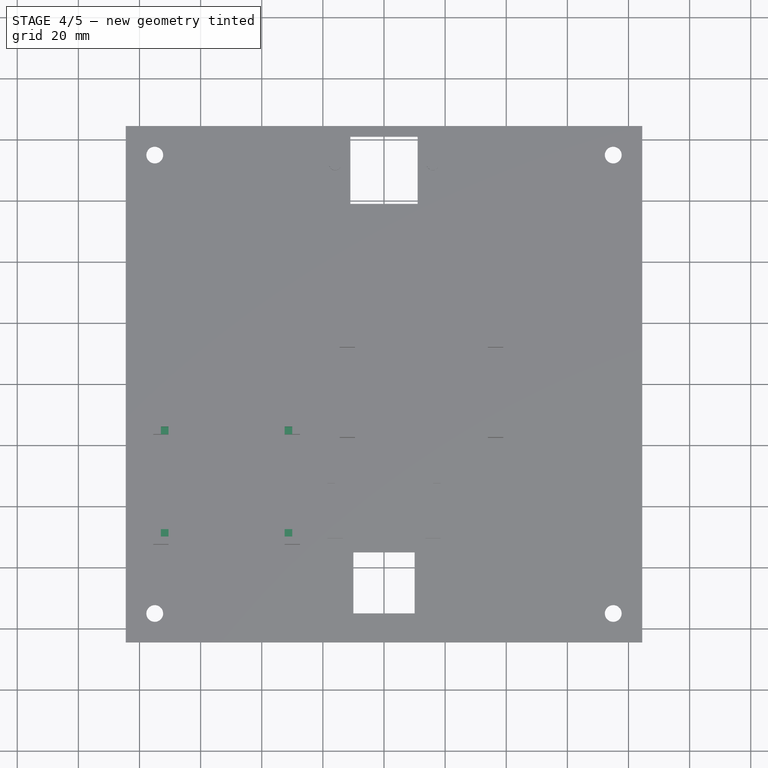
[diagram: stage 4 of 5 — top view after this stage's code; geometry added in this stage tinted green]
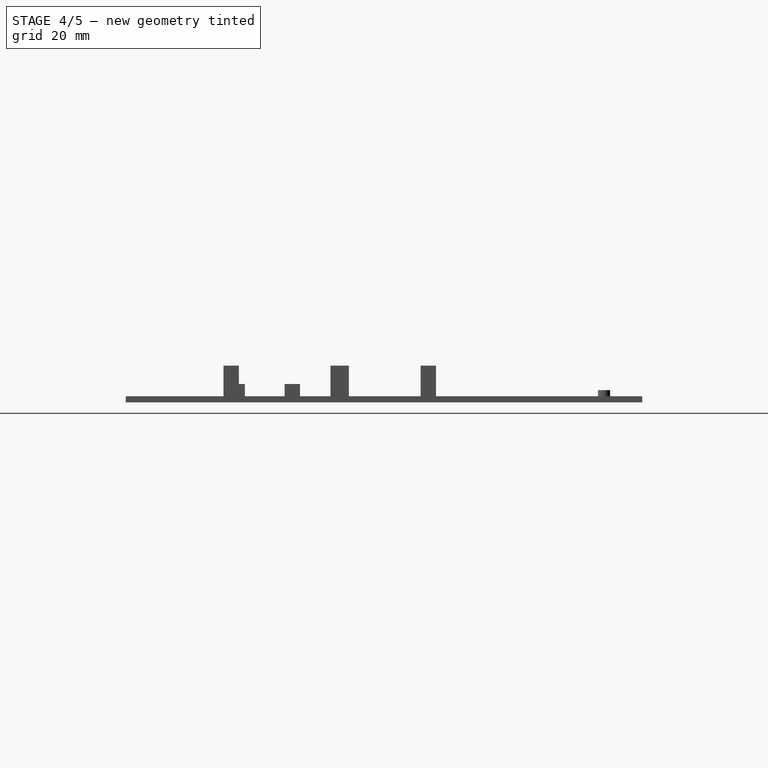
[diagram: stage 4 of 5 — right view after this stage's code; geometry added in this stage tinted green]
FEATURE [Sketcher::SketchObject] Sketch021
  ArcFitTolerance = 1e-06
  AttachmentSupport = -> [Pocket013]
  ExternalGeometry = -> [Pocket013]
  FullyConstrained = true
  MakeInternals = false
  MapMode = 5
  Placement = pos=(0,0,10) rot=(0,0,1;0rad)
  sketch-geometry (4):
    g0: LineSegment StartX=-70.5 StartY=-16.5 StartZ=0 EndX=-70.5 EndY=-14 EndZ=0
    g1: LineSegment StartX=-70.5 StartY=-14 StartZ=0 EndX=-73 EndY=-14 EndZ=0
    g2: LineSegment StartX=-73 StartY=-14 StartZ=0 EndX=-73 EndY=-16.5 EndZ=0
    g3: LineSegment StartX=-73 StartY=-16.5 StartZ=0 EndX=-70.5 EndY=-16.5 EndZ=0
  constraints (11):
    c: Coincident(g0,g1)
    c: Coincident(g1,g2)
    c: Coincident(g2,g3)
    c: Coincident(g3,g0)
    c: Vertical(g0)
    c: Vertical(g2)
    c: Horizontal(g1)
    c: Horizontal(g3)
    c: Coincident(g0,g-4)
    c: DistanceX(g1,g1) = 2.5
    c: DistanceY(g2,g2) = 2.5
FEATURE [PartDesign::Pocket] Pocket014
  BaseFeature = -> Pocket013
  Direction = (0,0,-1)
  Length = 5
  Length2 = 5
  Profile = -> Sketch021
  ReferenceAxis = -> Sketch021 [N_Axis]
  Refine = true
  Suppressed = false
  Type = 0
FEATURE [Sketcher::SketchObject] Sketch022
  ArcFitTolerance = 1e-06
  AttachmentSupport = -> [Pocket014]
  ExternalGeometry = -> [Pocket014]
  FullyConstrained = true
  MakeInternals = false
  MapMode = 5
  Placement = pos=(0,0,10) rot=(0,0,1;0rad)
  sketch-geometry (4):
    g0: LineSegment StartX=-32.5 StartY=-16.5 StartZ=0 EndX=-30 EndY=-16.5 EndZ=0
    g1: LineSegment StartX=-30 StartY=-16.5 StartZ=0 EndX=-30 EndY=-14 EndZ=0
    g2: LineSegment StartX=-30 StartY=-14 StartZ=0 EndX=-32.5 EndY=-14 EndZ=0
    g3: LineSegment StartX=-32.5 StartY=-14 StartZ=0 EndX=-32.5 EndY=-16.5 EndZ=0
  constraints (11):
    c: Coincident(g0,g1)
    c: Coincident(g1,g2)
    c: Coincident(g2,g3)
    c: Coincident(g3,g0)
    c: Horizontal(g0)
    c: Horizontal(g2)
    c: Vertical(g1)
    c: Vertical(g3)
    c: Coincident(g0,g-4)
    c: DistanceX(g2,g2) = 2.5
    c: DistanceY(g1,g1) = 2.5
FEATURE [PartDesign::Pocket] Pocket015
  BaseFeature = -> Pocket014
  Direction = (0,0,-1)
  Length = 5
  Length2 = 5
  Profile = -> Sketch022
  ReferenceAxis = -> Sketch022 [N_Axis]
  Refine = true
  Suppressed = false
  Type = 0
FEATURE [Sketcher::SketchObject] Sketch023
  ArcFitTolerance = 1e-06
  AttachmentSupport = -> [Pocket015]
  ExternalGeometry = -> [Pocket015]
  FullyConstrained = true
  MakeInternals = false
  MapMode = 5
  Placement = pos=(0,0,10) rot=(0,0,1;0rad)
  sketch-geometry (4):
    g0: LineSegment StartX=-70.5 StartY=-47.5 StartZ=0 EndX=-73 EndY=-47.5 EndZ=0
    g1: LineSegment StartX=-73 StartY=-47.5 StartZ=0 EndX=-73 EndY=-50 EndZ=0
    g2: LineSegment StartX=-73 StartY=-50 StartZ=0 EndX=-70.5 EndY=-50 EndZ=0
    g3: LineSegment StartX=-70.5 StartY=-50 StartZ=0 EndX=-70.5 EndY=-47.5 EndZ=0
  constraints (11):
    c: Coincident(g0,g1)
    c: Coincident(g1,g2)
    c: Coincident(g2,g3)
    c: Coincident(g3,g0)
    c: Horizontal(g0)
    c: Horizontal(g2)
    c: Vertical(g1)
    c: Vertical(g3)
    c: Coincident(g0,g-4)
    c: DistanceX(g2,g2) = 2.5
    c: DistanceY(g1,g1) = 2.5
FEATURE [PartDesign::Pocket] Pocket016
  BaseFeature = -> Pocket015
  Direction = (0,0,-1)
  Length = 5
  Length2 = 5
  Profile = -> Sketch023
  ReferenceAxis = -> Sketch023 [N_Axis]
  Refine = true
  Suppressed = false
  Type = 0
FEATURE [Sketcher::SketchObject] Sketch024
  ArcFitTolerance = 1e-06
  AttachmentSupport = -> [Pocket016]
  ExternalGeometry = -> [Pocket016]
  FullyConstrained = true
  MakeInternals = false
  MapMode = 5
  Placement = pos=(0,0,10) rot=(0,0,1;0rad)
  sketch-geometry (4):
    g0: LineSegment StartX=-32.5 StartY=-47.5 StartZ=0 EndX=-32.5 EndY=-50 EndZ=0
    g1: LineSegment StartX=-32.5 StartY=-50 StartZ=0 EndX=-30 EndY=-50 EndZ=0
    g2: LineSegment StartX=-30 StartY=-50 StartZ=0 EndX=-30 EndY=-47.5 EndZ=0
    g3: LineSegment StartX=-30 StartY=-47.5 StartZ=0 EndX=-32.5 EndY=-47.5 EndZ=0
  constraints (11):
    c: Coincident(g0,g1)
    c: Coincident(g1,g2)
    c: Coincident(g2,g3)
    c: Coincident(g3,g0)
    c: Vertical(g0)
    c: Vertical(g2)
    c: Horizontal(g1)
    c: Horizontal(g3)
    c: Coincident(g0,g-4)
    c: DistanceY(g2,g2) = 2.5
    c: DistanceX(g1,g1) = 2.5
FEATURE [PartDesign::Pocket] Pocket017
  BaseFeature = -> Pocket016
  Direction = (0,0,-1)
  Length = 5
  Length2 = 5
  Profile = -> Sketch024
  ReferenceAxis = -> Sketch024 [N_Axis]
  Refine = true
  Suppressed = false
  Type = 0
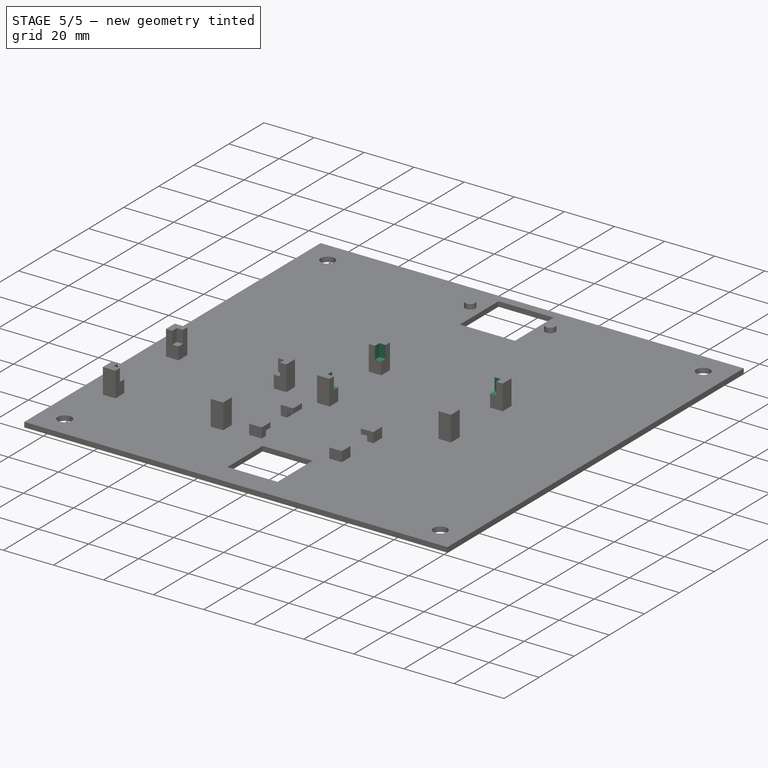
[diagram: stage 5 of 5 — iso view after this stage's code; geometry added in this stage tinted green]
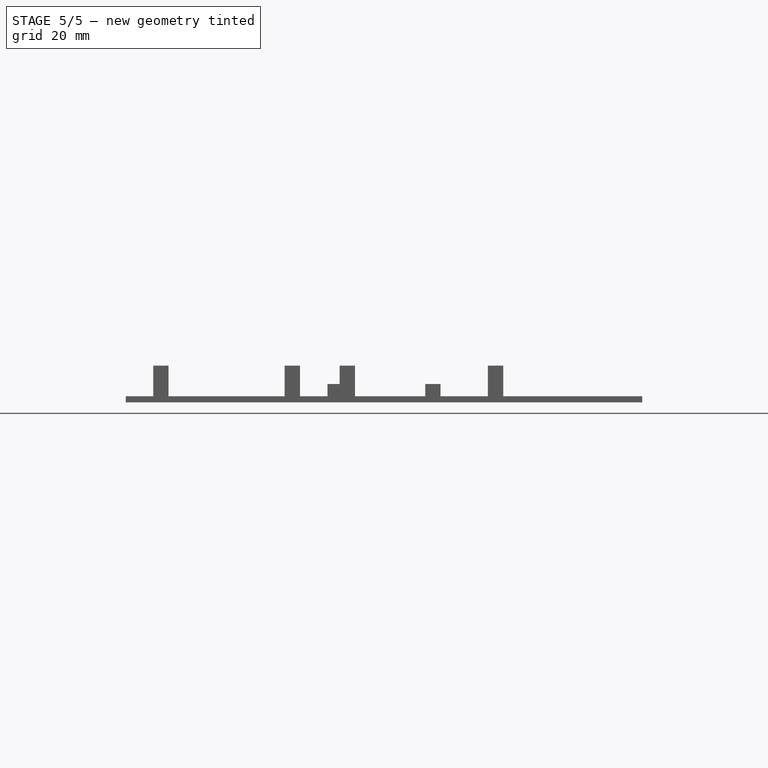
[diagram: stage 5 of 5 — front view after this stage's code; geometry added in this stage tinted green]
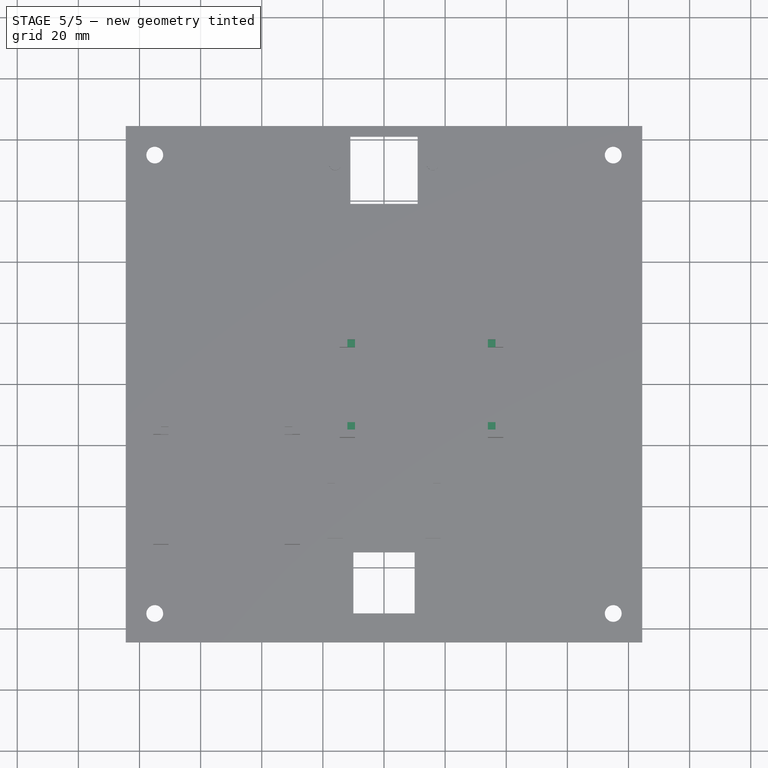
[diagram: stage 5 of 5 — top view after this stage's code; geometry added in this stage tinted green]
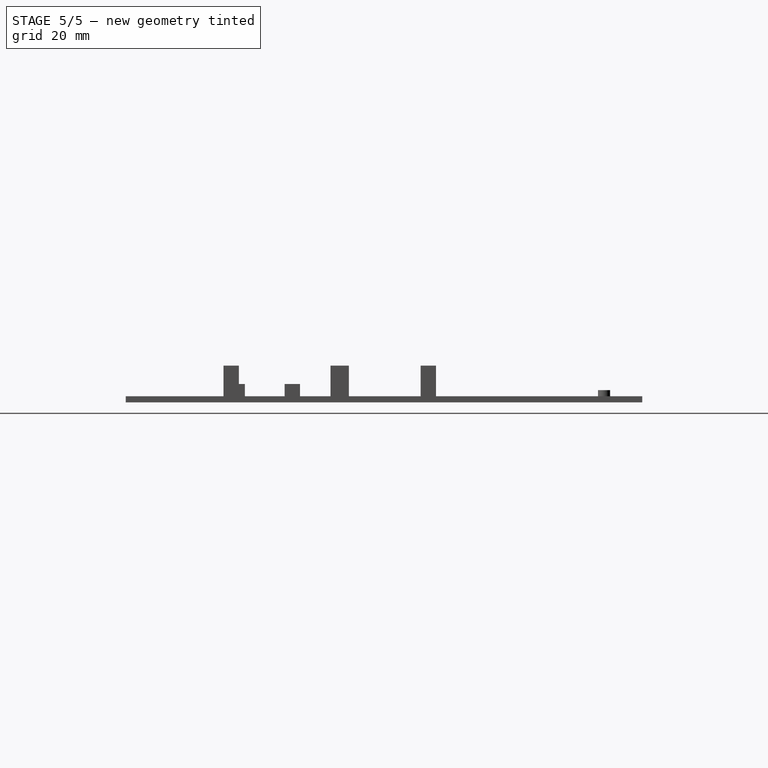
[diagram: stage 5 of 5 — right view after this stage's code; geometry added in this stage tinted green]
FEATURE [Sketcher::SketchObject] Sketch025
  ArcFitTolerance = 1e-06
  AttachmentSupport = -> [Pocket017]
  ExternalGeometry = -> [Pocket017]
  FullyConstrained = true
  MakeInternals = false
  MapMode = 5
  Placement = pos=(0,0,10) rot=(0,0,1;0rad)
  sketch-geometry (4):
    g0: LineSegment StartX=-9.5 StartY=12 StartZ=0 EndX=-9.5 EndY=14.5 EndZ=0
    g1: LineSegment StartX=-9.5 StartY=14.5 StartZ=0 EndX=-12 EndY=14.5 EndZ=0
    g2: LineSegment StartX=-12 StartY=14.5 StartZ=0 EndX=-12 EndY=12 EndZ=0
    g3: LineSegment StartX=-12 StartY=12 StartZ=0 EndX=-9.5 EndY=12 EndZ=0
  constraints (11):
    c: Coincident(g0,g1)
    c: Coincident(g1,g2)
    c: Coincident(g2,g3)
    c: Coincident(g3,g0)
    c: Vertical(g0)
    c: Vertical(g2)
    c: Horizontal(g1)
    c: Horizontal(g3)
    c: DistanceX(g1,g1) = 2.5
    c: Coincident(g0,g-4)
    c: DistanceY(g2,g2) = 2.5
FEATURE [PartDesign::Pocket] Pocket018
  BaseFeature = -> Pocket017
  Direction = (0,0,-1)
  Length = 5
  Length2 = 5
  Profile = -> Sketch025
  ReferenceAxis = -> Sketch025 [N_Axis]
  Refine = true
  Suppressed = false
  Type = 0
FEATURE [Sketcher::SketchObject] Sketch026
  ArcFitTolerance = 1e-06
  AttachmentSupport = -> [Pocket018]
  ExternalGeometry = -> [Pocket018]
  FullyConstrained = true
  MakeInternals = false
  MapMode = 5
  Placement = pos=(0,0,10) rot=(0,0,1;0rad)
  sketch-geometry (4):
    g0: LineSegment StartX=34 StartY=12 StartZ=0 EndX=36.5 EndY=12 EndZ=0
    g1: LineSegment StartX=36.5 StartY=12 StartZ=0 EndX=36.5 EndY=14.5 EndZ=0
    g2: LineSegment StartX=36.5 StartY=14.5 StartZ=0 EndX=34 EndY=14.5 EndZ=0
    g3: LineSegment StartX=34 StartY=14.5 StartZ=0 EndX=34 EndY=12 EndZ=0
  constraints (11):
    c: Coincident(g0,g1)
    c: Coincident(g1,g2)
    c: Coincident(g2,g3)
    c: Coincident(g3,g0)
    c: Horizontal(g0)
    c: Horizontal(g2)
    c: Vertical(g1)
    c: Vertical(g3)
    c: Coincident(g0,g-4)
    c: DistanceX(g2,g2) = 2.5
    c: DistanceY(g1,g1) = 2.5
FEATURE [PartDesign::Pocket] Pocket019
  BaseFeature = -> Pocket018
  Direction = (0,0,-1)
  Length = 5
  Length2 = 5
  Profile = -> Sketch026
  ReferenceAxis = -> Sketch026 [N_Axis]
  Refine = true
  Suppressed = false
  Type = 0
FEATURE [Sketcher::SketchObject] Sketch027
  ArcFitTolerance = 1e-06
  AttachmentSupport = -> [Pocket019]
  ExternalGeometry = -> [Pocket019]
  FullyConstrained = true
  MakeInternals = false
  MapMode = 5
  Placement = pos=(0,0,10) rot=(0,0,1;0rad)
  sketch-geometry (4):
    g0: LineSegment StartX=-9.5 StartY=-12.5 StartZ=0 EndX=-12 EndY=-12.5 EndZ=0
    g1: LineSegment StartX=-12 StartY=-12.5 StartZ=0 EndX=-12 EndY=-15 EndZ=0
    g2: LineSegment StartX=-12 StartY=-15 StartZ=0 EndX=-9.5 EndY=-15 EndZ=0
    g3: LineSegment StartX=-9.5 StartY=-15 StartZ=0 EndX=-9.5 EndY=-12.5 EndZ=0
  constraints (11):
    c: Coincident(g0,g1)
    c: Coincident(g1,g2)
    c: Coincident(g2,g3)
    c: Coincident(g3,g0)
    c: Horizontal(g0)
    c: Horizontal(g2)
    c: Vertical(g1)
    c: Vertical(g3)
    c: Coincident(g0,g-4)
    c: DistanceX(g2,g2) = 2.5
    c: DistanceY(g1,g1) = 2.5
FEATURE [PartDesign::Pocket] Pocket020
  BaseFeature = -> Pocket019
  Direction = (0,0,-1)
  Length = 5
  Length2 = 5
  Profile = -> Sketch027
  ReferenceAxis = -> Sketch027 [N_Axis]
  Refine = true
  Suppressed = false
  Type = 0
FEATURE [Sketcher::SketchObject] Sketch028
  ArcFitTolerance = 1e-06
  AttachmentSupport = -> [Pocket020]
  ExternalGeometry = -> [Pocket020]
  FullyConstrained = true
  MakeInternals = false
  MapMode = 5
  Placement = pos=(0,0,10) rot=(0,0,1;0rad)
  sketch-geometry (4):
    g0: LineSegment StartX=34 StartY=-12.5 StartZ=0 EndX=34 EndY=-15 EndZ=0
    g1: LineSegment StartX=34 StartY=-15 StartZ=0 EndX=36.5 EndY=-15 EndZ=0
    g2: LineSegment StartX=36.5 StartY=-15 StartZ=0 EndX=36.5 EndY=-12.5 EndZ=0
    g3: LineSegment StartX=36.5 StartY=-12.5 StartZ=0 EndX=34 EndY=-12.5 EndZ=0
  constraints (11):
    c: Coincident(g0,g1)
    c: Coincident(g1,g2)
    c: Coincident(g2,g3)
    c: Coincident(g3,g0)
    c: Vertical(g0)
    c: Vertical(g2)
    c: Horizontal(g1)
    c: Horizontal(g3)
    c: Coincident(g0,g-4)
    c: DistanceY(g2,g2) = 2.5
    c: DistanceX(g1,g1) = 2.5
FEATURE [PartDesign::Pocket] Pocket021
  BaseFeature = -> Pocket020
  Direction = (0,0,-1)
  Length = 5
  Length2 = 5
  Profile = -> Sketch028
  ReferenceAxis = -> Sketch028 [N_Axis]
  Refine = true
  Suppressed = false
  Type = 0
FEATURE [PartDesign::Body] Body  label="FrameBack"
  AllowCompound = false
  Group = -> [DatumPlane,Sketch,Pad,Sketch001,Sketch002,Pocket001,Sketch003,Pad001,Sketch005,Pad003,Sketch007,Pad004,Pocket,Sketch016,Pad005,Sketch017,Pocket010,Sketch018,Pocket011,Sketch019,Pocket012,Sketch020,Pocket013,Sketch021,Pocket014,Sketch022,Pocket015,Sketch023,Pocket016,Sketch024,Pocket017,Sketch025,Pocket018,Sketch026,Pocket019,Sketch027,Pocket020,Sketch028,Pocket021]
  Origin = -> Origin
  Tip = -> Pocket021
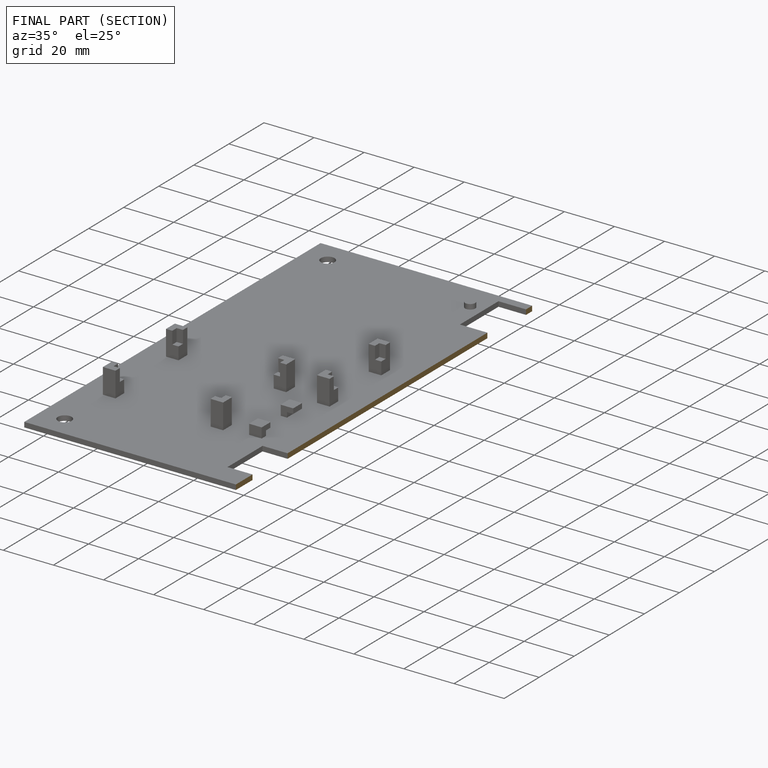
[diagram: finished part — half-section view (interior)]
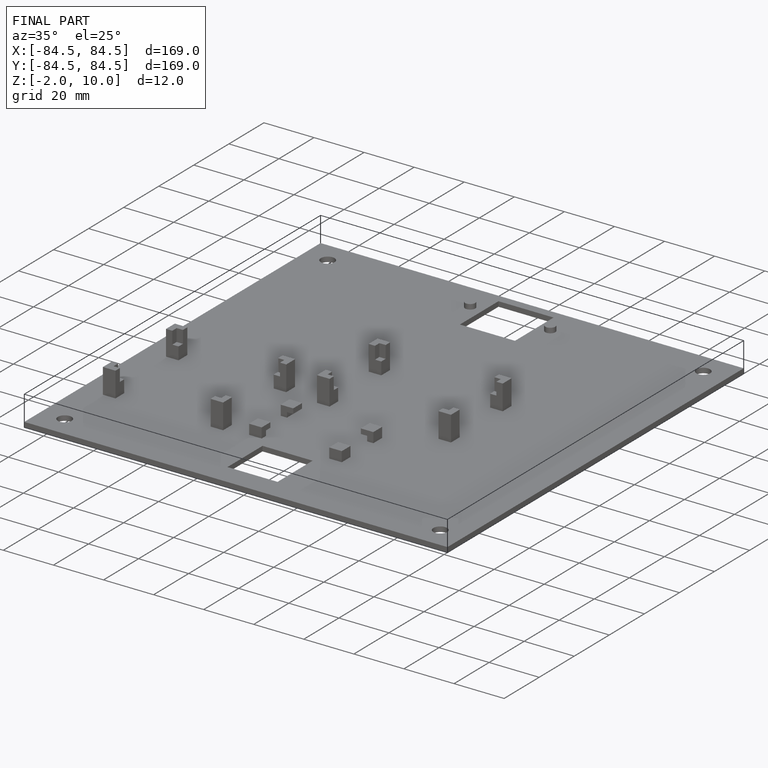
[diagram: finished part — iso view with bounding-box wireframe]
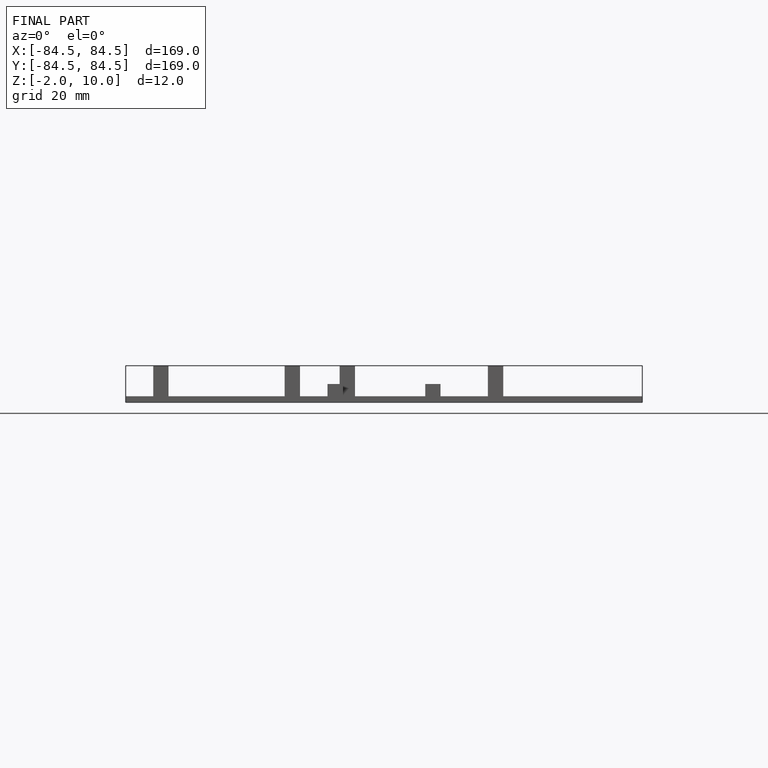
[diagram: finished part — front view with bounding-box wireframe]
